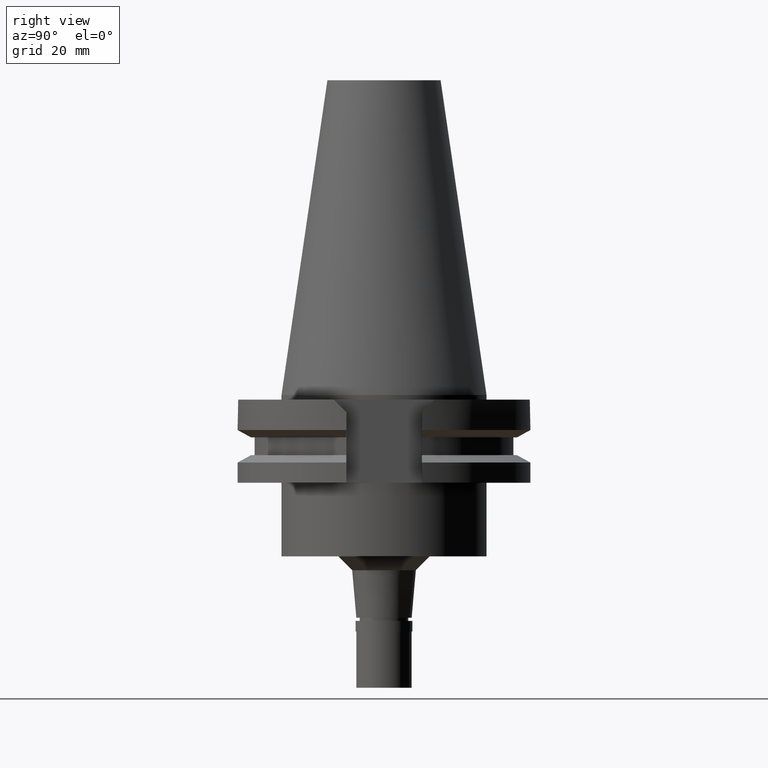
[diagram: clean part render]
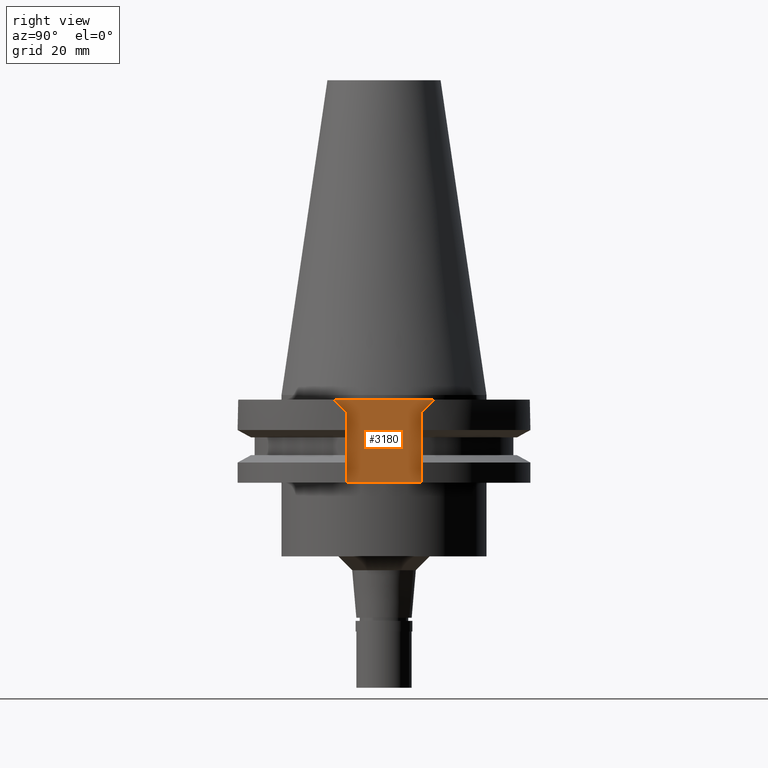
[diagram: same view with one face highlighted and labeled with its STEP entity id]
A machine part, right view. The second image highlights one B-rep face of the part: STEP entity #3180.
In plain terms, the highlighted planar face has unit normal (1, 0, 0).
Its self-contained STEP definition (entity closure, byte-faithful):
#50 = EDGE_LOOP ( 'NONE', ( #1697, #504, #2960, #337, #1125, #2978 ) ) ;
#85 = EDGE_CURVE ( 'NONE', #802, #771, #2671, .T. ) ;
#96 = LINE ( 'NONE', #152, #1261 ) ;
#117 = EDGE_CURVE ( 'NONE', #2253, #2115, #921, .T. ) ;
#131 = CARTESIAN_POINT ( 'NONE',  ( 22.57000000000000028, 0.0000000000000000000, 0.0000000000000000000 ) ) ;
#152 = CARTESIAN_POINT ( 'NONE',  ( 22.57000000000000028, 8.189999999999999503, -19.05000000000000071 ) ) ;
#190 = LINE ( 'NONE', #963, #3145 ) ;
#337 = ORIENTED_EDGE ( 'NONE', *, *, #582, .F. ) ;
#473 = DIRECTION ( 'NONE',  ( 0.0000000000000000000, 0.0000000000000000000, 1.000000000000000000 ) ) ;
#504 = ORIENTED_EDGE ( 'NONE', *, *, #85, .F. ) ;
#582 = EDGE_CURVE ( 'NONE', #2115, #714, #190, .T. ) ;
#596 = CARTESIAN_POINT ( 'NONE',  ( 22.57000000000000028, 10.89000000000000057, -1.000000000000000000 ) ) ;
#714 = VERTEX_POINT ( 'NONE', #1545 ) ;
#726 = CARTESIAN_POINT ( 'NONE',  ( 22.57000000000000028, 8.189999999999999503, -3.700000000000000178 ) ) ;
#771 = VERTEX_POINT ( 'NONE', #838 ) ;
#802 = VERTEX_POINT ( 'NONE', #1037 ) ;
#838 = CARTESIAN_POINT ( 'NONE',  ( 22.57000000000000028, 8.189999999999999503, -3.700000000000000178 ) ) ;
#905 = CARTESIAN_POINT ( 'NONE',  ( 22.57000000000000028, 10.89000000000000057, -1.000000000000000000 ) ) ;
#921 = LINE ( 'NONE', #2907, #2782 ) ;
#963 = CARTESIAN_POINT ( 'NONE',  ( 22.57000000000000028, -8.189999999999999503, -3.700000000000000178 ) ) ;
#1007 = EDGE_CURVE ( 'NONE', #802, #714, #1344, .T. ) ;
#1037 = CARTESIAN_POINT ( 'NONE',  ( 22.57000000000000028, 10.89000000000000057, -1.000000000000000000 ) ) ;
#1114 = DIRECTION ( 'NONE',  ( 1.000000000000000000, 0.0000000000000000000, 0.0000000000000000000 ) ) ;
#1122 = CARTESIAN_POINT ( 'NONE',  ( 22.57000000000000028, -8.189999999999999503, -3.700000000000000178 ) ) ;
#1125 = ORIENTED_EDGE ( 'NONE', *, *, #117, .F. ) ;
#1261 = VECTOR ( 'NONE', #1639, 1000.000000000000000 ) ;
#1286 = VECTOR ( 'NONE', #1904, 1000.000000000000114 ) ;
#1344 = LINE ( 'NONE', #596, #1463 ) ;
#1370 = VERTEX_POINT ( 'NONE', #2538 ) ;
#1382 = DIRECTION ( 'NONE',  ( 0.0000000000000000000, 1.000000000000000000, 0.0000000000000000000 ) ) ;
#1451 = PLANE ( 'NONE',  #1722 ) ;
#1463 = VECTOR ( 'NONE', #1623, 1000.000000000000000 ) ;
#1545 = CARTESIAN_POINT ( 'NONE',  ( 22.57000000000000028, -10.89000000000000057, -1.000000000000000000 ) ) ;
#1623 = DIRECTION ( 'NONE',  ( 0.0000000000000000000, -1.000000000000000000, 0.0000000000000000000 ) ) ;
#1639 = DIRECTION ( 'NONE',  ( 0.0000000000000000000, -1.000000000000000000, 0.0000000000000000000 ) ) ;
#1697 = ORIENTED_EDGE ( 'NONE', *, *, #2822, .F. ) ;
#1722 = AXIS2_PLACEMENT_3D ( 'NONE', #131, #1114, #1382 ) ;
#1904 = DIRECTION ( 'NONE',  ( 0.0000000000000000000, -0.7071067811865474617, -0.7071067811865474617 ) ) ;
#1948 = LINE ( 'NONE', #726, #2856 ) ;
#2115 = VERTEX_POINT ( 'NONE', #1122 ) ;
#2185 = CARTESIAN_POINT ( 'NONE',  ( 22.57000000000000028, -8.189999999999999503, -19.05000000000000071 ) ) ;
#2253 = VERTEX_POINT ( 'NONE', #2185 ) ;
#2387 = FACE_OUTER_BOUND ( 'NONE', #50, .T. ) ;
#2538 = CARTESIAN_POINT ( 'NONE',  ( 22.57000000000000028, 8.189999999999999503, -19.05000000000000071 ) ) ;
#2639 = DIRECTION ( 'NONE',  ( 0.0000000000000000000, -0.7071067811865474617, 0.7071067811865474617 ) ) ;
#2644 = EDGE_CURVE ( 'NONE', #1370, #2253, #96, .T. ) ;
#2671 = LINE ( 'NONE', #905, #1286 ) ;
#2693 = DIRECTION ( 'NONE',  ( 0.0000000000000000000, 0.0000000000000000000, -1.000000000000000000 ) ) ;
#2782 = VECTOR ( 'NONE', #473, 1000.000000000000000 ) ;
#2822 = EDGE_CURVE ( 'NONE', #771, #1370, #1948, .T. ) ;
#2856 = VECTOR ( 'NONE', #2693, 1000.000000000000000 ) ;
#2907 = CARTESIAN_POINT ( 'NONE',  ( 22.57000000000000028, -8.189999999999999503, -19.05000000000000071 ) ) ;
#2960 = ORIENTED_EDGE ( 'NONE', *, *, #1007, .T. ) ;
#2978 = ORIENTED_EDGE ( 'NONE', *, *, #2644, .F. ) ;
#3145 = VECTOR ( 'NONE', #2639, 1000.000000000000114 ) ;
#3180 = ADVANCED_FACE ( 'NONE', ( #2387 ), #1451, .T. ) ;